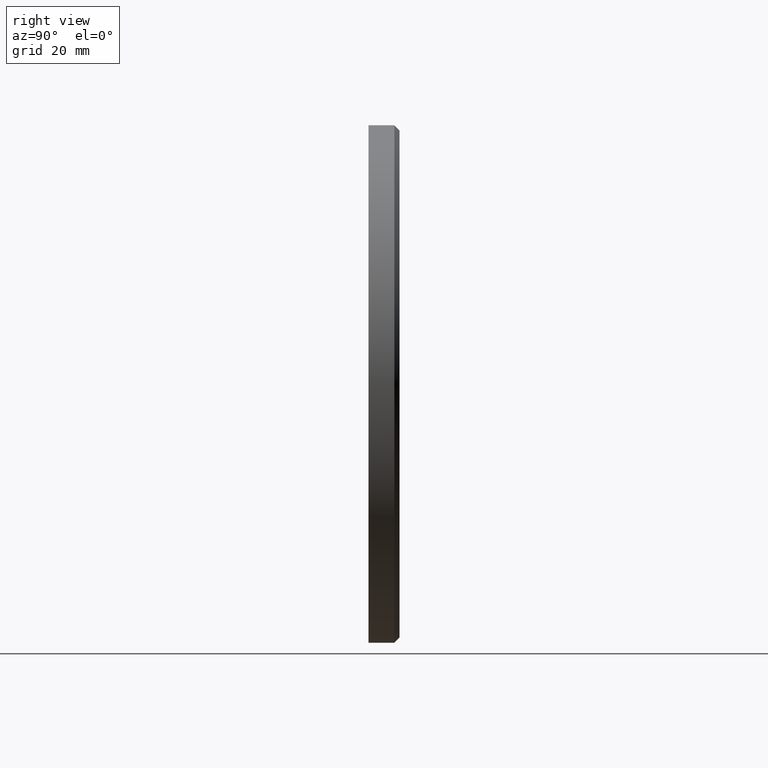
[diagram: clean part render]
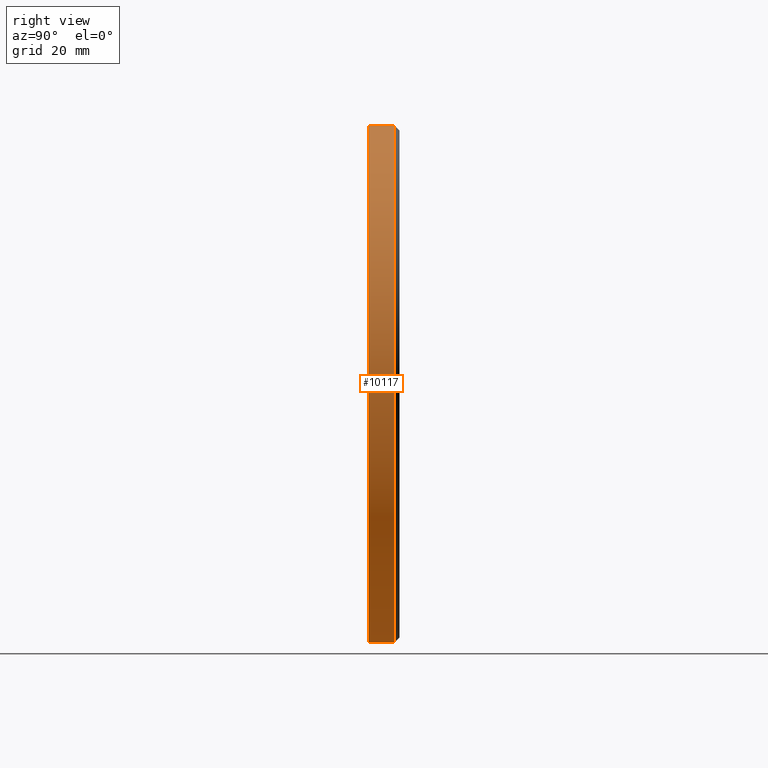
[diagram: same view with one face highlighted and labeled with its STEP entity id]
A machine part, right view. The second image highlights one B-rep face of the part: STEP entity #10117.
In plain terms, the highlighted cylindrical surface (partial cylindrical patch) has radius 50 mm, axis along (-0, -1, -0).
Its self-contained STEP definition (entity closure, byte-faithful):
#159 = CARTESIAN_POINT ( 'NONE',  ( 0.000000000000000000, 4.999999999999999112, -50.00000000000000000 ) ) ;
#321 = VERTEX_POINT ( 'NONE', #1565 ) ;
#370 = CARTESIAN_POINT ( 'NONE',  ( 0.000000000000000000, 6.000000000000000000, 0.000000000000000000 ) ) ;
#549 = EDGE_CURVE ( 'NONE', #8713, #321, #3977, .T. ) ;
#928 = VECTOR ( 'NONE', #8530, 1000.000000000000000 ) ;
#980 = CYLINDRICAL_SURFACE ( 'NONE', #5107, 50.00000000000000000 ) ;
#1065 = DIRECTION ( 'NONE',  ( 0.000000000000000000, 0.000000000000000000, 1.000000000000000000 ) ) ;
#1338 = CARTESIAN_POINT ( 'NONE',  ( 6.123233995736766085E-15, 6.000000000000000000, 50.00000000000000000 ) ) ;
#1437 = ORIENTED_EDGE ( 'NONE', *, *, #4075, .T. ) ;
#1565 = CARTESIAN_POINT ( 'NONE',  ( 6.123233995736766085E-15, 0.000000000000000000, 50.00000000000000000 ) ) ;
#1586 = VERTEX_POINT ( 'NONE', #8971 ) ;
#1683 = EDGE_CURVE ( 'NONE', #2954, #1586, #2525, .T. ) ;
#2525 = LINE ( 'NONE', #5237, #5111 ) ;
#2954 = VERTEX_POINT ( 'NONE', #159 ) ;
#3010 = ORIENTED_EDGE ( 'NONE', *, *, #7315, .T. ) ;
#3092 = DIRECTION ( 'NONE',  ( 0.000000000000000000, 1.000000000000000000, 0.000000000000000000 ) ) ;
#3187 = CARTESIAN_POINT ( 'NONE',  ( 0.000000000000000000, 0.000000000000000000, 0.000000000000000000 ) ) ;
#3572 = AXIS2_PLACEMENT_3D ( 'NONE', #3187, #3092, #11313 ) ;
#3825 = CIRCLE ( 'NONE', #3572, 50.00000000000000000 ) ;
#3977 = LINE ( 'NONE', #1338, #928 ) ;
#4075 = EDGE_CURVE ( 'NONE', #321, #1586, #3825, .T. ) ;
#5107 = AXIS2_PLACEMENT_3D ( 'NONE', #370, #7571, #11764 ) ;
#5111 = VECTOR ( 'NONE', #6280, 1000.000000000000000 ) ;
#5237 = CARTESIAN_POINT ( 'NONE',  ( 0.000000000000000000, 6.000000000000000000, -50.00000000000000000 ) ) ;
#5702 = ORIENTED_EDGE ( 'NONE', *, *, #549, .T. ) ;
#6280 = DIRECTION ( 'NONE',  ( -0.000000000000000000, -1.000000000000000000, -0.000000000000000000 ) ) ;
#6310 = FACE_OUTER_BOUND ( 'NONE', #7427, .T. ) ;
#7259 = CARTESIAN_POINT ( 'NONE',  ( 0.000000000000000000, 4.999999999999999112, 0.000000000000000000 ) ) ;
#7315 = EDGE_CURVE ( 'NONE', #2954, #8713, #9924, .T. ) ;
#7427 = EDGE_LOOP ( 'NONE', ( #3010, #5702, #1437, #9032 ) ) ;
#7571 = DIRECTION ( 'NONE',  ( -0.000000000000000000, -1.000000000000000000, -0.000000000000000000 ) ) ;
#8099 = AXIS2_PLACEMENT_3D ( 'NONE', #7259, #9409, #1065 ) ;
#8530 = DIRECTION ( 'NONE',  ( -0.000000000000000000, -1.000000000000000000, -0.000000000000000000 ) ) ;
#8713 = VERTEX_POINT ( 'NONE', #13005 ) ;
#8971 = CARTESIAN_POINT ( 'NONE',  ( 0.000000000000000000, 0.000000000000000000, -50.00000000000000000 ) ) ;
#9032 = ORIENTED_EDGE ( 'NONE', *, *, #1683, .F. ) ;
#9409 = DIRECTION ( 'NONE',  ( 0.000000000000000000, -1.000000000000000000, 0.000000000000000000 ) ) ;
#9924 = CIRCLE ( 'NONE', #8099, 50.00000000000000000 ) ;
#10117 = ADVANCED_FACE ( 'NONE', ( #6310 ), #980, .T. ) ;
#11313 = DIRECTION ( 'NONE',  ( 0.000000000000000000, 0.000000000000000000, 1.000000000000000000 ) ) ;
#11764 = DIRECTION ( 'NONE',  ( 0.000000000000000000, 0.000000000000000000, -1.000000000000000000 ) ) ;
#13005 = CARTESIAN_POINT ( 'NONE',  ( 6.123233995736766085E-15, 4.999999999999999112, 50.00000000000000000 ) ) ;